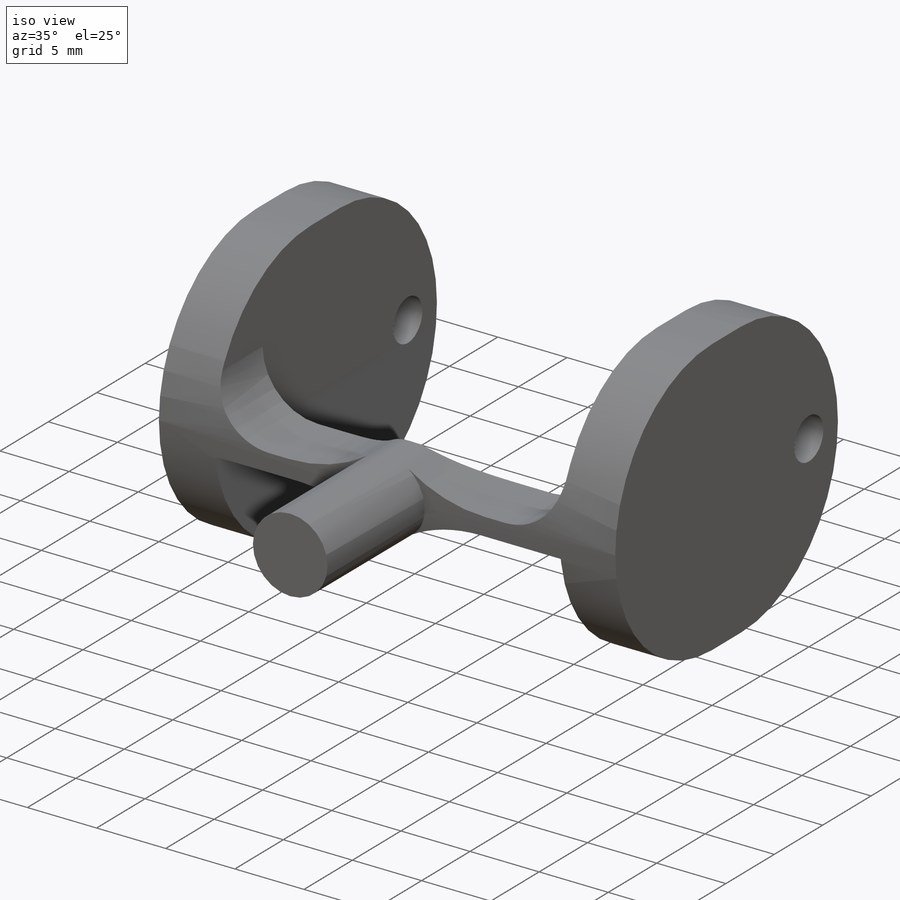
[diagram: iso view]
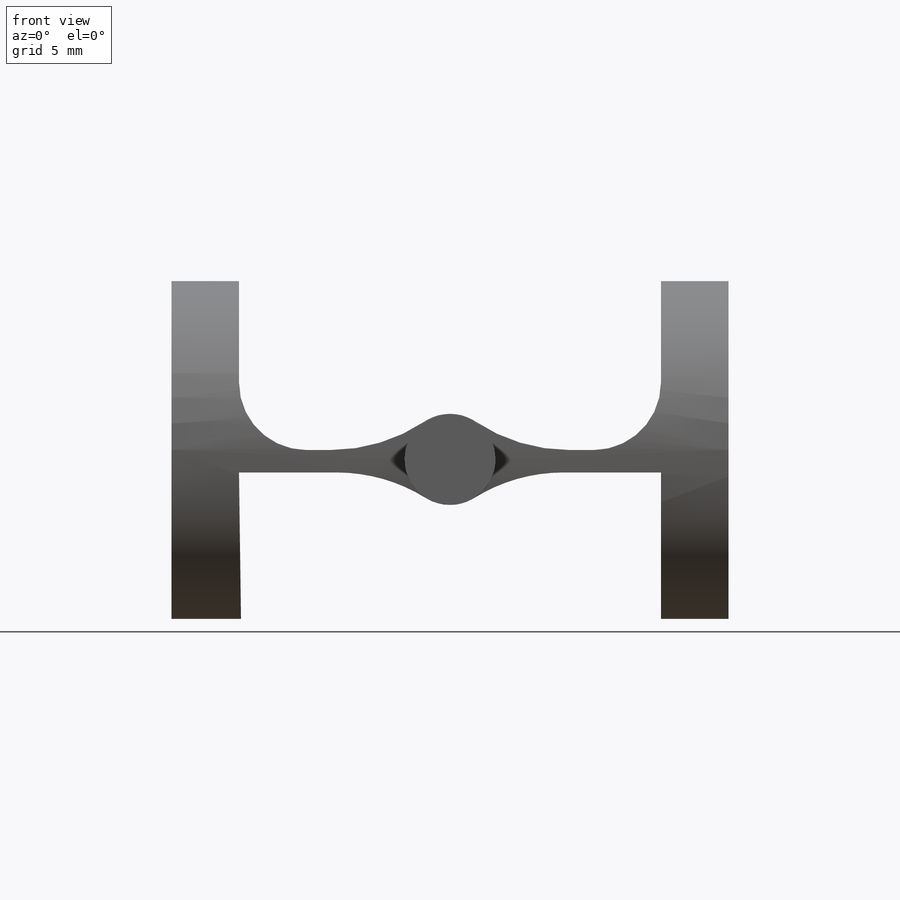
[diagram: front view]
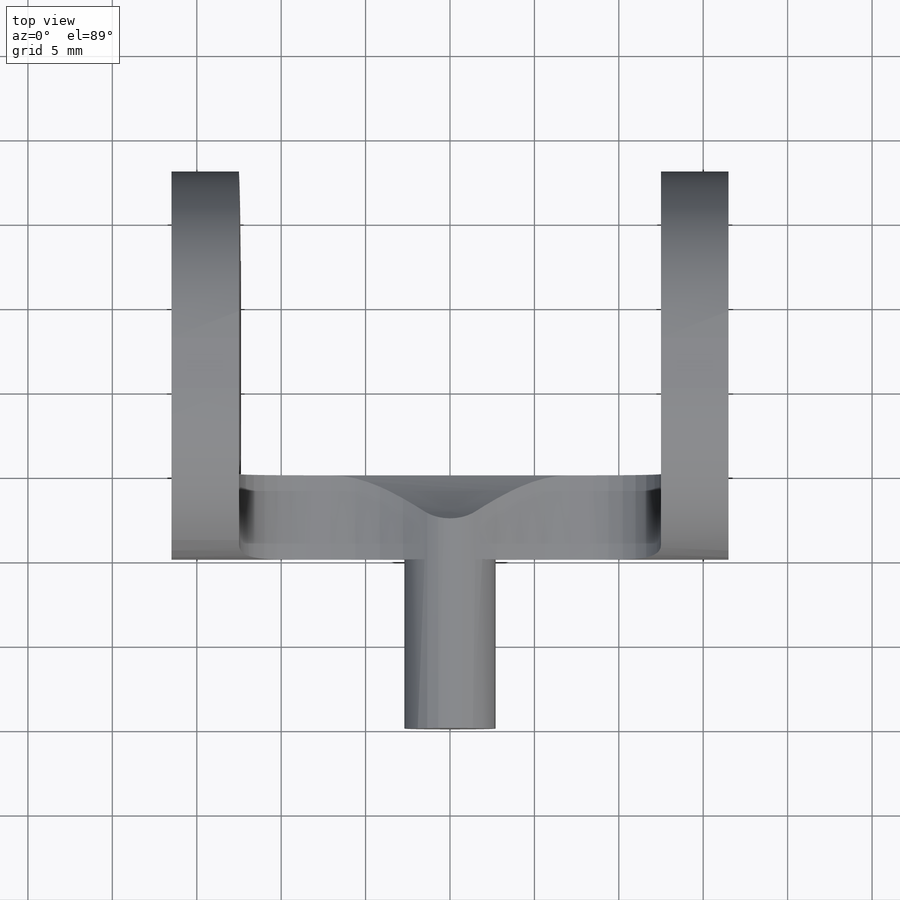
[diagram: top view]
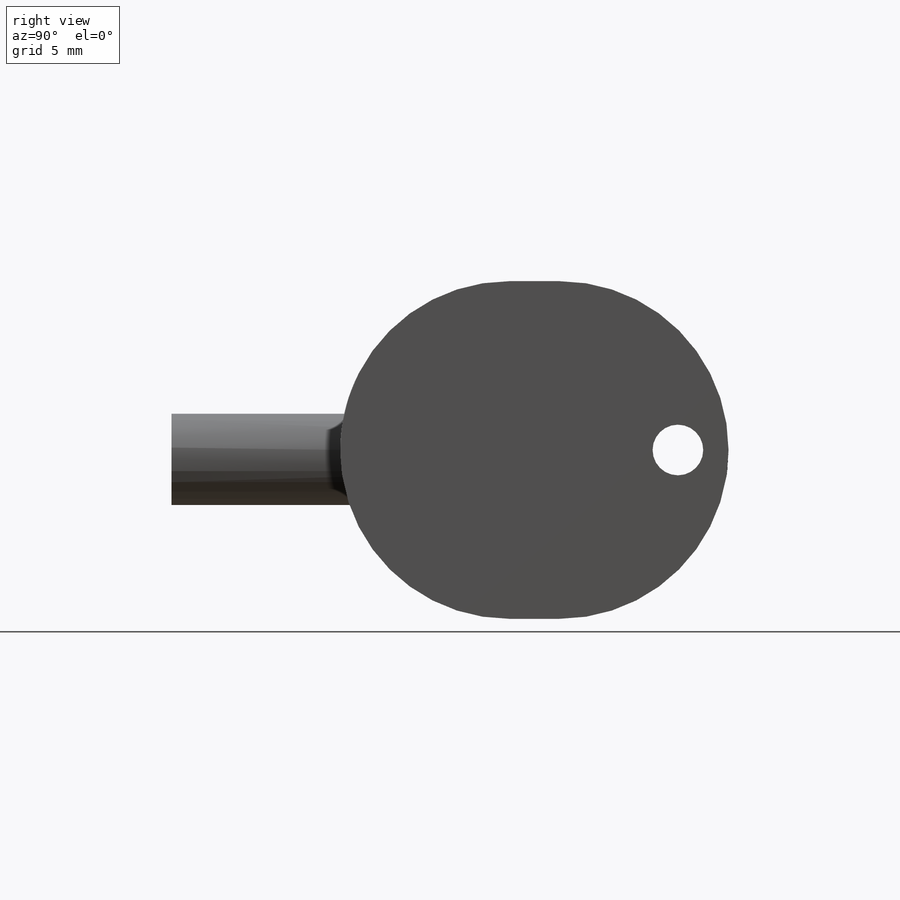
[diagram: right view]
SOLIDWORKS PART (.sldprt)
format: sldprt  version: not decoded by parser v0  size: 322,560 bytes
history: native  units: mm
features: fillet x16, sketch x4, plane x3, extrude x3, material x1, cut_extrude x1 (+10 scaffold rows collapsed)
feature tree (38):
  scaffold x10  (default folders/planes/origin — collapsed)
  material  "Material <não especificado>"
  plane  "Plano frontal"
  plane  "Plano superior"
  plane  "Plano direito"
  sketch  "Esboço1"  dims[D1=5.4mm]
  extrude  "Ressalto-extrusão1"  Depth=10mm
  sketch  "3DSketch1"  dims[D1=12.5mm D2=12.5mm]
  extrude  "Ressalto-extrusão2"  Depth=5mm
  fillet  "Filete1"  Radius=10mm
  fillet  "Filete2"  Radius=10mm
  fillet  "Filete3"  Radius=10mm
  fillet  "Filete4"  Radius=10mm
  fillet  "Filete5"  Radius=10mm
  fillet  "Filete6"  Radius=10mm
  sketch  "3DSketch3"  dims[c1.D1=~9.908883mm c1.D3=10.0mm c1.D2=~9.837497mm c2.D1=10.0mm c2.D3=~9.837497mm c2.D4=10.0mm c3.D4=~9.908883mm c3.D5=10.0mm c4.D5=~3.570665mm c4.D6=4.0mm c5.D6=~3.173926mm c5.D7=4.0mm c5.D1=4.0mm c5.D2=4.0mm c5.D3=20.0mm c5.D4=20.0mm c5.D5=4.0mm c6.D6=10.0mm c6.D7=10.0mm]
  extrude  "Ressalto-extrusão3"  Depth=18mm
  fillet  "Filete7"  Radius=10mm
  fillet  "Filete8"  Radius=10mm
  fillet  "Filete9"  Radius=10mm
  fillet  "Filete10"  Radius=10mm
  sketch  "Esboço2"  dims[D2=3.0mm D1=20.0mm]
  cut_extrude  "Corte-extrusão1"  Depth=20mm
  fillet  "Filete11"  Radius=10mm
  fillet  "Filete12"  Radius=10mm
  fillet  "Filete13"  Radius=10mm
  fillet  "Filete14"  Radius=10mm
  fillet  "Filete19"  Radius=4mm
  fillet  "Filete20"  Radius=4mm
decode coverage: 24 of 24 modeling features carry decoded parameters
note: ~ marks probable driven/reference dimensions
note: suppression state not decoded; provenance and decode notes live in map.json
